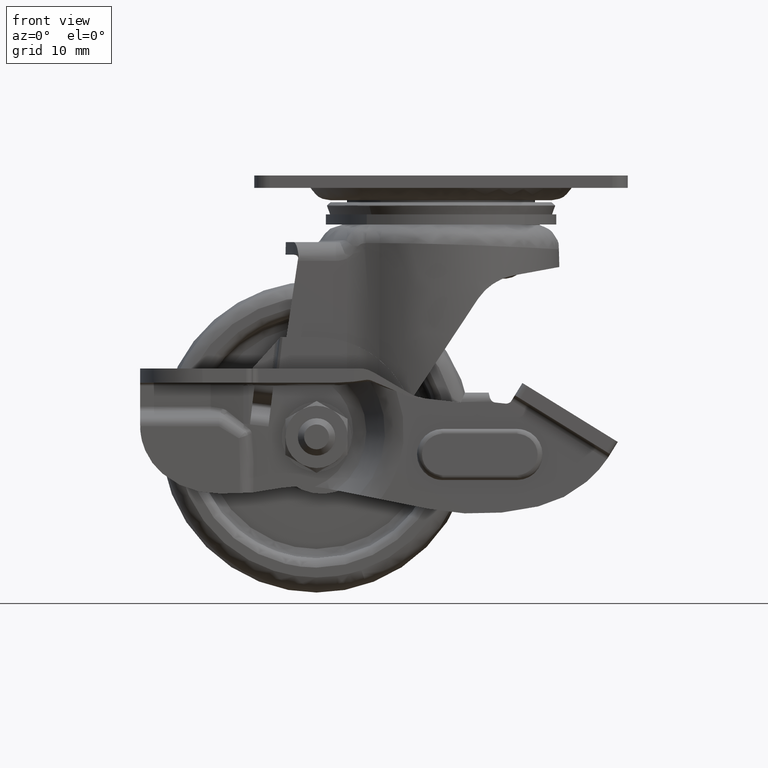
[diagram: clean part render]
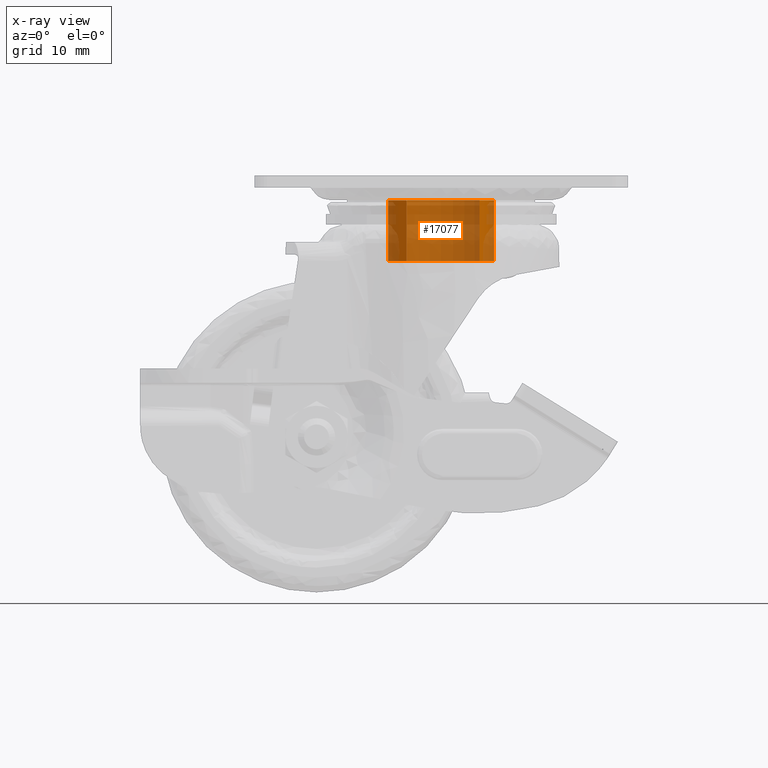
[diagram: x-ray — body ghosted, one internal face saturated and labeled with its STEP entity id]
A machine part, front view, then the same camera in x-ray: the body is ghosted and one INTERNAL B-rep face — a face not visible from any outside direction — is saturated and labeled: STEP entity #17077.
In plain terms, the highlighted face is a freeform B-spline surface patch.
Its self-contained STEP definition (entity closure, byte-faithful):
#16925=CARTESIAN_POINT('',(-5.489090161260027,-6.490557402365552,-3.738265700000000));
#16926=CARTESIAN_POINT('',(-5.674847125583667,-6.333462000222924,-3.738265700000000));
#16927=CARTESIAN_POINT('',(-5.851315392701062,-6.165999867578940,-3.738265700000000));
#16928=CARTESIAN_POINT('',(-12.017315260280007,-0.314684474877878,-3.738265700000000));
#16929=CARTESIAN_POINT('',(-6.165999867578947,5.851315392701069,-3.738265700000000));
#16930=CARTESIAN_POINT('',(-0.314684474877885,12.017315260280014,-3.738265700000000));
#16931=CARTESIAN_POINT('',(5.851315392701062,6.165999867578954,-3.738265700000000));
#16932=CARTESIAN_POINT('',(12.017315260280007,0.314684474877892,-3.738265700000000));
#16933=CARTESIAN_POINT('',(6.165999867578947,-5.851315392701054,-3.738265700000000));
#16934=CARTESIAN_POINT('',(-5.489090161260027,-6.490557402365552,-14.041211357500003));
#16935=CARTESIAN_POINT('',(-5.674847125583667,-6.333462000222924,-14.041211357499998));
#16936=CARTESIAN_POINT('',(-5.851315392701062,-6.165999867578940,-14.041211357500000));
#16937=CARTESIAN_POINT('',(-12.017315260280007,-0.314684474877878,-14.041211357500002));
#16938=CARTESIAN_POINT('',(-6.165999867578947,5.851315392701069,-14.041211357500000));
#16939=CARTESIAN_POINT('',(-0.314684474877885,12.017315260280014,-14.041211357500002));
#16940=CARTESIAN_POINT('',(5.851315392701062,6.165999867578954,-14.041211357500000));
#16941=CARTESIAN_POINT('',(12.017315260280007,0.314684474877892,-14.041211357500002));
#16942=CARTESIAN_POINT('',(6.165999867578947,-5.851315392701054,-14.041211357500000));
#16950=(BOUNDED_SURFACE()B_SPLINE_SURFACE(2,1,((#16925,#16934),(#16926,#16935),(#16927,#16936),(#16928,#16937),(#16929,#16938),(#16930,#16939),(#16931,#16940),(#16932,#16941),(#16933,#16942)),.UNSPECIFIED.,.F.,.F.,.U.)B_SPLINE_SURFACE_WITH_KNOTS((3,2,2,2,3),(2,2),(0.0,0.563359472913861,14.647346295760370,28.731333118606880,42.815319941453382),(0.0,10.302945657500000),.UNSPECIFIED.)GEOMETRIC_REPRESENTATION_ITEM()RATIONAL_B_SPLINE_SURFACE(((0.977505800795127,0.977505800795127),(0.988284271247462,0.988284271247462),(1.0,1.0),(0.707106781186548,0.707106781186548),(1.0,1.0),(0.707106781186548,0.707106781186548),(1.0,1.0),(0.707106781186548,0.707106781186548),(1.0,1.0)))REPRESENTATION_ITEM('')SURFACE());
#16951=CARTESIAN_POINT('',(-5.489090442626326,-6.490557571083002,-13.789920000002089));
#16952=VERTEX_POINT('',#16951);
#16953=CARTESIAN_POINT('',(-8.500438000000001,7.105427E-015,-13.789920000000000));
#16954=VERTEX_POINT('',#16953);
#16955=CARTESIAN_POINT('',(-5.489090442626326,-6.490557571083002,-13.789920000002089));
#16956=CARTESIAN_POINT('',(-5.988491906277672,-6.068414207979465,-13.789920000001960));
#16957=CARTESIAN_POINT('',(-6.703512855111512,-5.305722512696322,-13.789920000001700));
#16958=CARTESIAN_POINT('',(-7.556723925068319,-3.975080588895815,-13.789920000001279));
#16959=CARTESIAN_POINT('',(-8.276128546226408,-2.307621733122854,-13.789920000000750));
#16960=CARTESIAN_POINT('',(-8.500944838157063,-0.884758679851593,-13.789920000000270));
#16961=CARTESIAN_POINT('',(-8.500438000000001,7.105427E-015,-13.789920000000000));
#16962=B_SPLINE_CURVE_WITH_KNOTS('',3,(#16955,#16956,#16957,#16958,#16959,#16960,#16961),.UNSPECIFIED.,.F.,.U.,(4,1,1,1,4),(0.000000040657221,1.961708286614236,3.115659261121256,4.731164138016780,7.385251060232306),.UNSPECIFIED.);
#16963=EDGE_CURVE('',#16952,#16954,#16962,.T.);
#16964=ORIENTED_EDGE('',*,*,#16963,.T.);
#16965=CARTESIAN_POINT('',(0.000001259543321,8.500437999999914,-13.789920000000000));
#16966=VERTEX_POINT('',#16965);
#16967=CARTESIAN_POINT('',(-8.500438000000001,7.105427E-015,-13.789920000000000));
#16968=CARTESIAN_POINT('',(-8.500530172541849,0.591122577735431,-13.789919999999990));
#16969=CARTESIAN_POINT('',(-8.387508301200993,1.669005532426106,-13.789920000000039));
#16970=CARTESIAN_POINT('',(-7.850754028351163,3.439204279285773,-13.789919999999990));
#16971=CARTESIAN_POINT('',(-6.986033181345351,4.965736927236543,-13.789919999999990));
#16972=CARTESIAN_POINT('',(-5.884215661288739,6.180975645465209,-13.789920000000039));
#16973=CARTESIAN_POINT('',(-4.828315563569496,7.036806776144383,-13.789920000000039));
#16974=CARTESIAN_POINT('',(-3.712640387458237,7.687028272954758,-13.789920000000000));
#16975=CARTESIAN_POINT('',(-2.086132353103445,8.314557684572684,-13.789919999999981));
#16976=CARTESIAN_POINT('',(-0.834580550334807,8.500810447190359,-13.789920000000050));
#16977=CARTESIAN_POINT('',(0.000001259543321,8.500437999999914,-13.789920000000000));
#16978=B_SPLINE_CURVE_WITH_KNOTS('',3,(#16967,#16968,#16969,#16970,#16971,#16972,#16973,#16974,#16975,#16976,#16977),.UNSPECIFIED.,.F.,.U.,(4,1,1,1,1,1,1,1,4),(0.000000126453937,1.773359967974310,3.233818865245263,5.528822405626615,6.989179539651651,8.136674558555338,9.597138021970327,10.848943694935270,13.352541277455099),.UNSPECIFIED.);
#16979=EDGE_CURVE('',#16954,#16966,#16978,.T.);
#16980=ORIENTED_EDGE('',*,*,#16979,.T.);
#16981=CARTESIAN_POINT('',(8.500438000000001,7.105427E-015,-13.789920000000000));
#16982=VERTEX_POINT('',#16981);
#16983=CARTESIAN_POINT('',(0.000001259543321,8.500437999999914,-13.789920000000000));
#16984=CARTESIAN_POINT('',(0.591120445469646,8.500522971322731,-13.789919999999981));
#16985=CARTESIAN_POINT('',(1.808128955407032,8.373010709459676,-13.789920000000050));
#16986=CARTESIAN_POINT('',(3.302955877454182,7.879207221576221,-13.789920000000020));
#16987=CARTESIAN_POINT('',(4.716318305649017,7.123764240168401,-13.789919999999951));
#16988=CARTESIAN_POINT('',(5.902202157448556,6.198241449739542,-13.789920000000000));
#16989=CARTESIAN_POINT('',(7.147865056430969,4.736362717868769,-13.789920000000050));
#16990=CARTESIAN_POINT('',(8.036734569931397,3.023318556121041,-13.789919999999860));
#16991=CARTESIAN_POINT('',(8.440685725995648,1.321328950136252,-13.789920000000190));
#16992=CARTESIAN_POINT('',(8.500432678837685,0.347704807345091,-13.789919999999860));
#16993=CARTESIAN_POINT('',(8.500438000000001,7.105427E-015,-13.789920000000000));
#16994=B_SPLINE_CURVE_WITH_KNOTS('',3,(#16983,#16984,#16985,#16986,#16987,#16988,#16989,#16990,#16991,#16992,#16993),.UNSPECIFIED.,.F.,.U.,(4,1,1,1,1,1,1,1,4),(0.000000126888983,1.773359779810386,3.651087245643986,4.694275499848278,6.571989651556149,8.136673693477203,10.431672849896650,12.309409478247790,13.352539857647351),.UNSPECIFIED.);
#16995=EDGE_CURVE('',#16966,#16982,#16994,.T.);
#16996=ORIENTED_EDGE('',*,*,#16995,.T.);
#16997=CARTESIAN_POINT('',(6.165999570075770,-5.851315249383713,-13.789919999997080));
#16998=VERTEX_POINT('',#16997);
#16999=CARTESIAN_POINT('',(8.500438000000001,7.105427E-015,-13.789920000000000));
#17000=CARTESIAN_POINT('',(8.500533659564155,-0.638653356409638,-13.789919999999670));
#17001=CARTESIAN_POINT('',(8.355855806032567,-1.915899046540265,-13.789919999999080));
#17002=CARTESIAN_POINT('',(7.637853033349996,-3.958308039614535,-13.789919999997940));
#17003=CARTESIAN_POINT('',(6.767956183347621,-5.217660051924243,-13.789919999997441));
#17004=CARTESIAN_POINT('',(6.165999570075770,-5.851315249383713,-13.789919999997080));
#17005=B_SPLINE_CURVE_WITH_KNOTS('',3,(#16999,#17000,#17001,#17002,#17003,#17004),.UNSPECIFIED.,.F.,.U.,(4,1,1,4),(0.000000033775417,1.915954226007739,3.831884510198174,6.453725267922208),.UNSPECIFIED.);
#17006=EDGE_CURVE('',#16982,#16998,#17005,.T.);
#17007=ORIENTED_EDGE('',*,*,#17006,.T.);
#17008=CARTESIAN_POINT('',(6.165999570923628,-5.851315248490257,-3.983428000000001));
#17009=VERTEX_POINT('',#17008);
#17010=CARTESIAN_POINT('',(6.165999570923628,-5.851315248490257,-3.983428000000001));
#17011=CARTESIAN_POINT('',(6.165999570075770,-5.851315249383713,-13.789919999997080));
#17012=QUASI_UNIFORM_CURVE('',1,(#17010,#17011),.UNSPECIFIED.,.F.,.U.);
#17013=EDGE_CURVE('',#17009,#16998,#17012,.T.);
#17014=ORIENTED_EDGE('',*,*,#17013,.F.);
#17015=CARTESIAN_POINT('',(8.500438000000001,7.105427E-015,-3.983428000000000));
#17016=VERTEX_POINT('',#17015);
#17017=CARTESIAN_POINT('',(8.500438000000001,7.105427E-015,-3.983428000000000));
#17018=CARTESIAN_POINT('',(8.500707890113095,-0.773131404621800,-3.983428000000014));
#17019=CARTESIAN_POINT('',(8.324922926196594,-2.050258294662064,-3.983427999999976));
#17020=CARTESIAN_POINT('',(7.560418890289332,-4.070226458990134,-3.983428000000026));
#17021=CARTESIAN_POINT('',(6.767978533432106,-5.217658662646407,-3.983427999999979));
#17022=CARTESIAN_POINT('',(6.165999570923628,-5.851315248490257,-3.983428000000001));
#17023=B_SPLINE_CURVE_WITH_KNOTS('',3,(#17017,#17018,#17019,#17020,#17021,#17022),.UNSPECIFIED.,.F.,.U.,(4,1,1,4),(0.000000033774593,2.319319585592754,3.831884509466602,6.453725266690469),.UNSPECIFIED.);
#17024=EDGE_CURVE('',#17016,#17009,#17023,.T.);
#17025=ORIENTED_EDGE('',*,*,#17024,.F.);
#17026=CARTESIAN_POINT('',(0.000001259543321,8.500437999999914,-3.983428000000000));
#17027=VERTEX_POINT('',#17026);
#17028=CARTESIAN_POINT('',(0.000001259543321,8.500437999999914,-3.983428000000000));
#17029=CARTESIAN_POINT('',(0.591127959839133,8.500541821019441,-3.983427999999994));
#17030=CARTESIAN_POINT('',(1.529923243819775,8.402078334716602,-3.983428000000013));
#17031=CARTESIAN_POINT('',(2.906508361573244,8.021087884088480,-3.983427999999993));
#17032=CARTESIAN_POINT('',(4.374407289357439,7.370786554939237,-3.983428000000009));
#17033=CARTESIAN_POINT('',(5.924474542168351,6.221055652463390,-3.983427999999980));
#17034=CARTESIAN_POINT('',(7.092675814562549,4.779493204059876,-3.983428000000003));
#17035=CARTESIAN_POINT('',(7.799301817926663,3.457191221665899,-3.983428000000003));
#17036=CARTESIAN_POINT('',(8.339696151839812,1.947105924578001,-3.983427999999991));
#17037=CARTESIAN_POINT('',(8.500727182634400,0.765013321510853,-3.983428000000020));
#17038=CARTESIAN_POINT('',(8.500438000000001,7.105427E-015,-3.983428000000000));
#17039=B_SPLINE_CURVE_WITH_KNOTS('',3,(#17028,#17029,#17030,#17031,#17032,#17033,#17034,#17035,#17036,#17037,#17038),.UNSPECIFIED.,.F.,.U.,(4,1,1,1,1,1,1,1,4),(0.000000126888983,1.773359779810386,2.816549015072670,4.277001743709628,6.571989651556149,8.553946809583817,9.805767824898332,11.057589756271209,13.352539857647351),.UNSPECIFIED.);
#17040=EDGE_CURVE('',#17027,#17016,#17039,.T.);
#17041=ORIENTED_EDGE('',*,*,#17040,.F.);
#17042=CARTESIAN_POINT('',(-8.500438000000001,7.105427E-015,-3.983428000000000));
#17043=VERTEX_POINT('',#17042);
#17044=CARTESIAN_POINT('',(-8.500438000000001,7.105427E-015,-3.983428000000000));
#17045=CARTESIAN_POINT('',(-8.500520226136546,0.591119423232029,-3.983428000000003));
#17046=CARTESIAN_POINT('',(-8.373018902479013,1.808125291246166,-3.983427999999994));
#17047=CARTESIAN_POINT('',(-7.857281355039068,3.369407167480470,-3.983428000000008));
#17048=CARTESIAN_POINT('',(-7.167861076396047,4.621745865058583,-3.983427999999990));
#17049=CARTESIAN_POINT('',(-6.351557614136887,5.708505643184195,-3.983428000000033));
#17050=CARTESIAN_POINT('',(-5.314061562639697,6.696306077049584,-3.983427999999988));
#17051=CARTESIAN_POINT('',(-4.173118066058514,7.438505002201141,-3.983428000000003));
#17052=CARTESIAN_POINT('',(-3.036489591762694,7.967572129741703,-3.983427999999999));
#17053=CARTESIAN_POINT('',(-1.703780517395284,8.380830897389943,-3.983428000000008));
#17054=CARTESIAN_POINT('',(-0.625895636888842,8.500552177912965,-3.983427999999995));
#17055=CARTESIAN_POINT('',(0.000001259543321,8.500437999999914,-3.983428000000000));
#17056=B_SPLINE_CURVE_WITH_KNOTS('',3,(#17044,#17045,#17046,#17047,#17048,#17049,#17050,#17051,#17052,#17053,#17054,#17055),.UNSPECIFIED.,.F.,.U.,(4,1,1,1,1,1,1,1,1,4),(0.000000126453937,1.773359967974310,3.651087633470075,4.902891532722267,6.050412367644507,7.719401193873867,9.179868286568251,10.118723827679251,11.474864261961320,13.352541277455099),.UNSPECIFIED.);
#17057=EDGE_CURVE('',#17043,#17027,#17056,.T.);
#17058=ORIENTED_EDGE('',*,*,#17057,.F.);
#17059=CARTESIAN_POINT('',(-5.489090441615049,-6.490557571938242,-3.983428000000001));
#17060=VERTEX_POINT('',#17059);
#17061=CARTESIAN_POINT('',(-5.489090441615049,-6.490557571938242,-3.983428000000001));
#17062=CARTESIAN_POINT('',(-6.164889915693554,-5.919562383664709,-3.983428000000002));
#17063=CARTESIAN_POINT('',(-7.208158997967281,-4.711347517598743,-3.983427999999996));
#17064=CARTESIAN_POINT('',(-8.251928191591658,-2.461505408690528,-3.983428000000004));
#17065=CARTESIAN_POINT('',(-8.500904436578573,-0.884732000234019,-3.983427999999999));
#17066=CARTESIAN_POINT('',(-8.500438000000001,7.105427E-015,-3.983428000000000));
#17067=B_SPLINE_CURVE_WITH_KNOTS('',3,(#17061,#17062,#17063,#17064,#17065,#17066),.UNSPECIFIED.,.F.,.U.,(4,1,1,4),(0.000000040656809,2.654086963369305,4.731164138865154,7.385251061556774),.UNSPECIFIED.);
#17068=EDGE_CURVE('',#17060,#17043,#17067,.T.);
#17069=ORIENTED_EDGE('',*,*,#17068,.F.);
#17070=CARTESIAN_POINT('',(-5.489090441615049,-6.490557571938242,-3.983428000000001));
#17071=CARTESIAN_POINT('',(-5.489090442626326,-6.490557571083002,-13.789920000002089));
#17072=QUASI_UNIFORM_CURVE('',1,(#17070,#17071),.UNSPECIFIED.,.F.,.U.);
#17073=EDGE_CURVE('',#17060,#16952,#17072,.T.);
#17074=ORIENTED_EDGE('',*,*,#17073,.T.);
#17075=EDGE_LOOP('',(#16964,#16980,#16996,#17007,#17014,#17025,#17041,#17058,#17069,#17074));
#17076=FACE_OUTER_BOUND('',#17075,.T.);
#17077=ADVANCED_FACE('',(#17076),#16950,.F.);